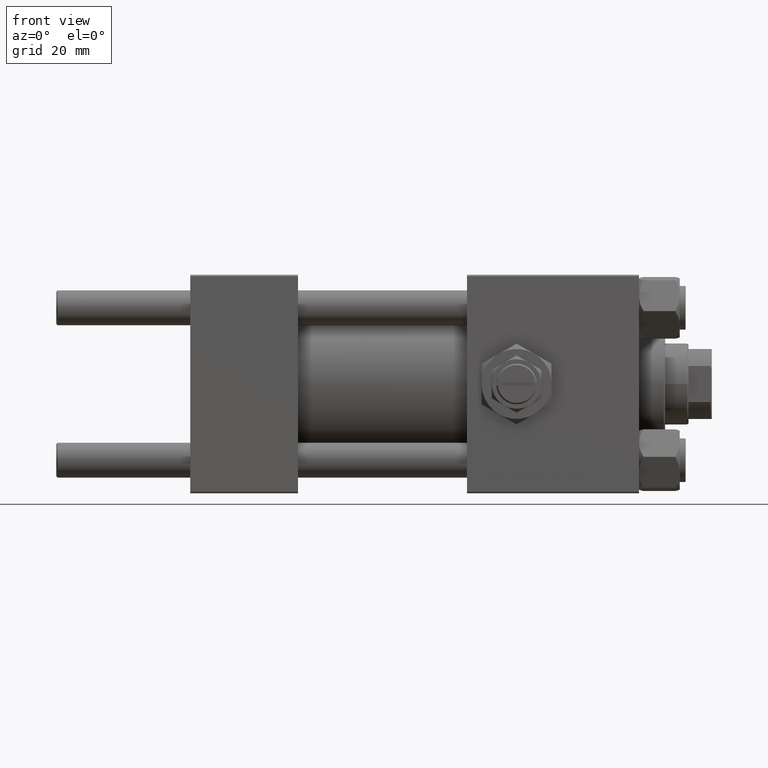
[diagram: clean part render]
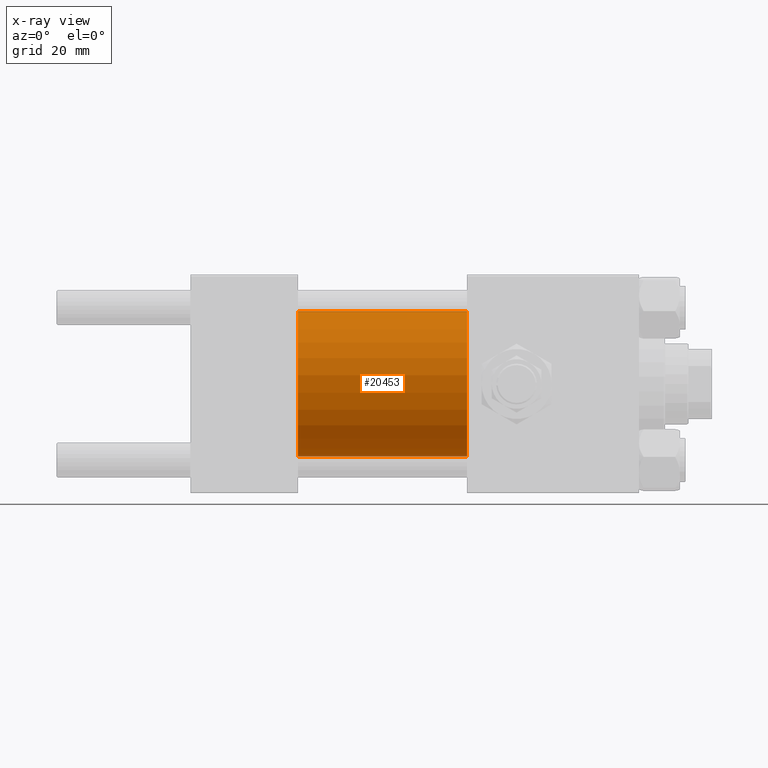
[diagram: x-ray — body ghosted, one internal face saturated and labeled with its STEP entity id]
A machine part, front view, then the same camera in x-ray: the body is ghosted and one INTERNAL B-rep face — a face not visible from any outside direction — is saturated and labeled: STEP entity #20453.
In plain terms, the highlighted cylindrical surface (partial cylindrical patch) has radius 25 mm, axis along (-1, -0, -0).
Its self-contained STEP definition (entity closure, byte-faithful):
#849 = VERTEX_POINT ( 'NONE', #18562 ) ;
#866 = ORIENTED_EDGE ( 'NONE', *, *, #35713, .F. ) ;
#1254 = DIRECTION ( 'NONE',  ( 1.000000000000000000, 0.000000000000000000, 0.000000000000000000 ) ) ;
#3117 = DIRECTION ( 'NONE',  ( 0.000000000000000000, 0.000000000000000000, 1.000000000000000000 ) ) ;
#7100 = DIRECTION ( 'NONE',  ( -1.000000000000000000, -0.000000000000000000, -0.000000000000000000 ) ) ;
#7479 = AXIS2_PLACEMENT_3D ( 'NONE', #25049, #1254, #9378 ) ;
#9352 = EDGE_CURVE ( 'NONE', #29388, #849, #23312, .T. ) ;
#9378 = DIRECTION ( 'NONE',  ( 0.000000000000000000, 0.000000000000000000, -1.000000000000000000 ) ) ;
#9447 = CARTESIAN_POINT ( 'NONE',  ( 95.00000000000000000, 3.061616997868382254E-15, -25.00000000000000000 ) ) ;
#9664 = DIRECTION ( 'NONE',  ( 0.000000000000000000, 0.000000000000000000, -1.000000000000000000 ) ) ;
#14192 = EDGE_CURVE ( 'NONE', #16549, #24125, #48032, .T. ) ;
#16549 = VERTEX_POINT ( 'NONE', #9447 ) ;
#18017 = DIRECTION ( 'NONE',  ( 1.000000000000000000, 0.000000000000000000, 0.000000000000000000 ) ) ;
#18562 = CARTESIAN_POINT ( 'NONE',  ( 37.00000000000000000, 0.000000000000000000, 25.00000000000000000 ) ) ;
#18807 = CARTESIAN_POINT ( 'NONE',  ( 95.00000000000000000, 0.000000000000000000, 0.000000000000000000 ) ) ;
#19780 = CARTESIAN_POINT ( 'NONE',  ( 95.00000000000000000, 3.061616997868382254E-15, -25.00000000000000000 ) ) ;
#20034 = DIRECTION ( 'NONE',  ( -1.000000000000000000, -0.000000000000000000, -0.000000000000000000 ) ) ;
#20453 = ADVANCED_FACE ( 'NONE', ( #23758 ), #27443, .F. ) ;
#23312 = LINE ( 'NONE', #39026, #44794 ) ;
#23758 = FACE_OUTER_BOUND ( 'NONE', #39609, .T. ) ;
#24125 = VERTEX_POINT ( 'NONE', #27822 ) ;
#25049 = CARTESIAN_POINT ( 'NONE',  ( 95.00000000000000000, 0.000000000000000000, 0.000000000000000000 ) ) ;
#27443 = CYLINDRICAL_SURFACE ( 'NONE', #51719, 25.00000000000000000 ) ;
#27822 = CARTESIAN_POINT ( 'NONE',  ( 37.00000000000000000, 3.061616997868382254E-15, -25.00000000000000000 ) ) ;
#28719 = ORIENTED_EDGE ( 'NONE', *, *, #50135, .T. ) ;
#29388 = VERTEX_POINT ( 'NONE', #31586 ) ;
#31341 = CIRCLE ( 'NONE', #35545, 25.00000000000000000 ) ;
#31586 = CARTESIAN_POINT ( 'NONE',  ( 95.00000000000000000, 0.000000000000000000, 25.00000000000000000 ) ) ;
#33378 = CIRCLE ( 'NONE', #7479, 25.00000000000000000 ) ;
#35545 = AXIS2_PLACEMENT_3D ( 'NONE', #45514, #18017, #9664 ) ;
#35555 = DIRECTION ( 'NONE',  ( -1.000000000000000000, -0.000000000000000000, -0.000000000000000000 ) ) ;
#35713 = EDGE_CURVE ( 'NONE', #849, #24125, #31341, .T. ) ;
#39026 = CARTESIAN_POINT ( 'NONE',  ( 95.00000000000000000, 0.000000000000000000, 25.00000000000000000 ) ) ;
#39609 = EDGE_LOOP ( 'NONE', ( #28719, #43491, #866, #44709 ) ) ;
#43491 = ORIENTED_EDGE ( 'NONE', *, *, #14192, .T. ) ;
#44709 = ORIENTED_EDGE ( 'NONE', *, *, #9352, .F. ) ;
#44794 = VECTOR ( 'NONE', #7100, 1000.000000000000000 ) ;
#45514 = CARTESIAN_POINT ( 'NONE',  ( 37.00000000000000000, 0.000000000000000000, 0.000000000000000000 ) ) ;
#48032 = LINE ( 'NONE', #19780, #49034 ) ;
#49034 = VECTOR ( 'NONE', #20034, 1000.000000000000000 ) ;
#50135 = EDGE_CURVE ( 'NONE', #29388, #16549, #33378, .T. ) ;
#51719 = AXIS2_PLACEMENT_3D ( 'NONE', #18807, #35555, #3117 ) ;